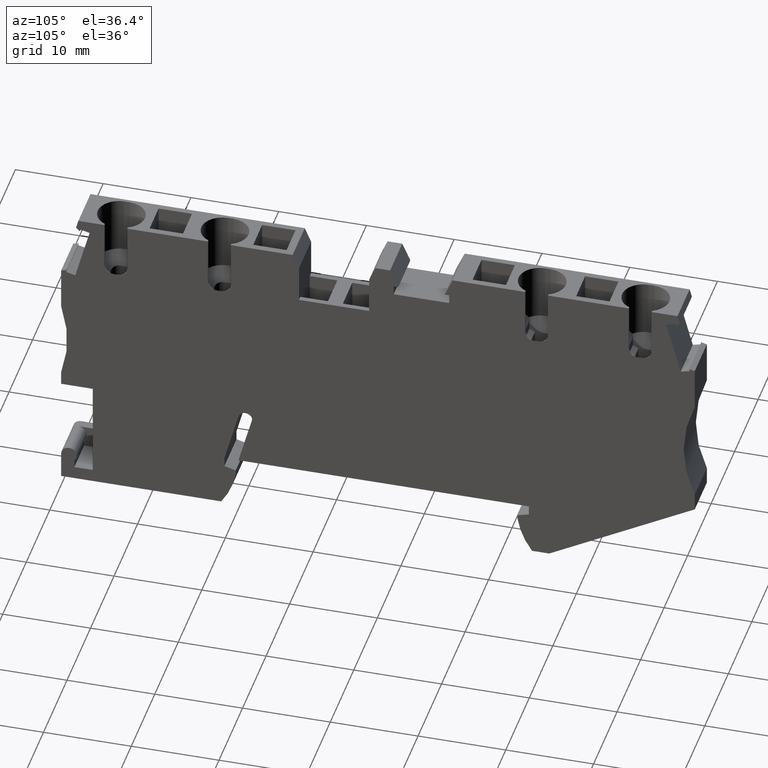
[diagram: clean part render]
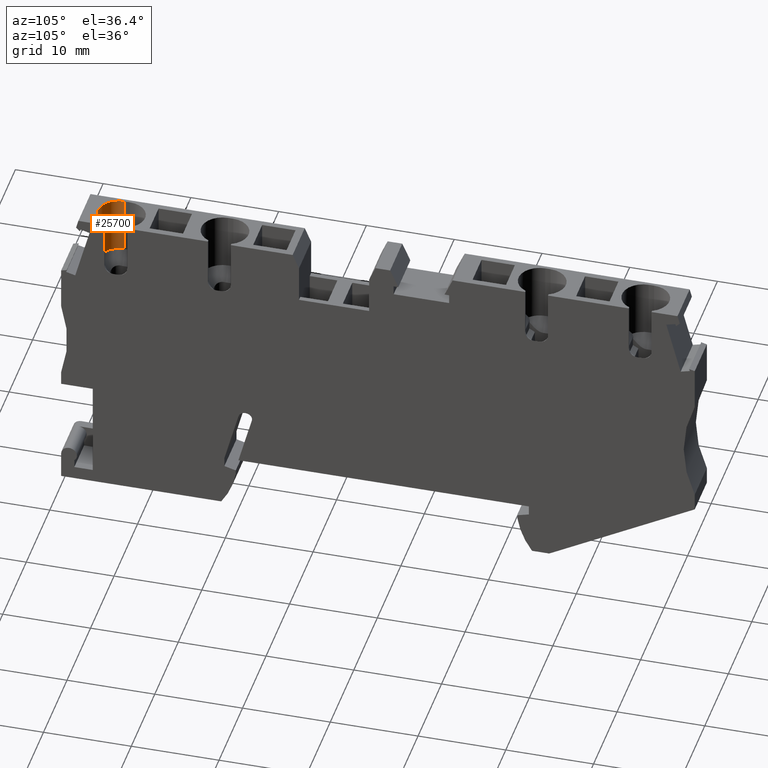
[diagram: same view with one face highlighted and labeled with its STEP entity id]
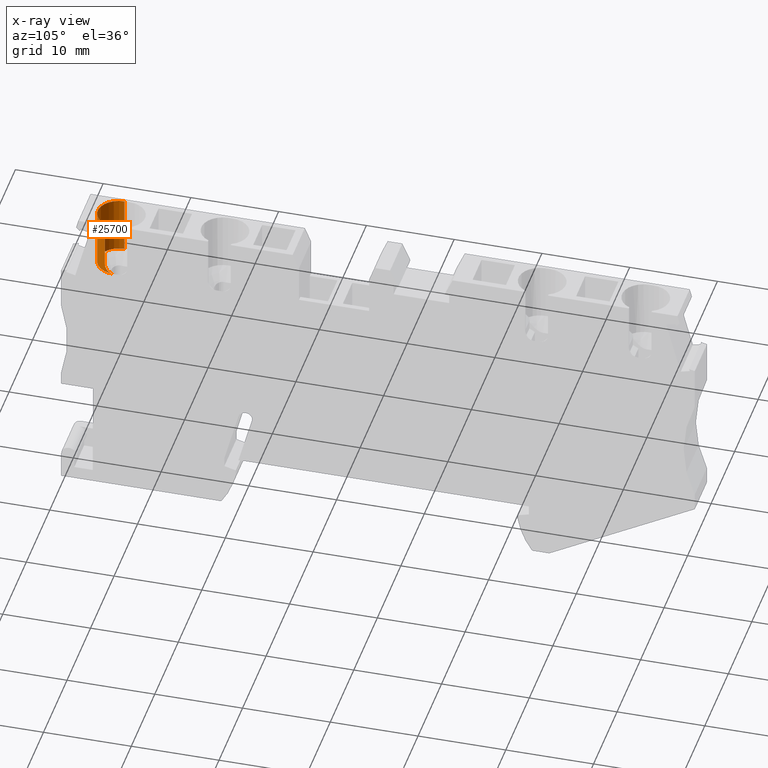
[diagram: x-ray of the same camera — body ghosted, the highlighted face saturated]
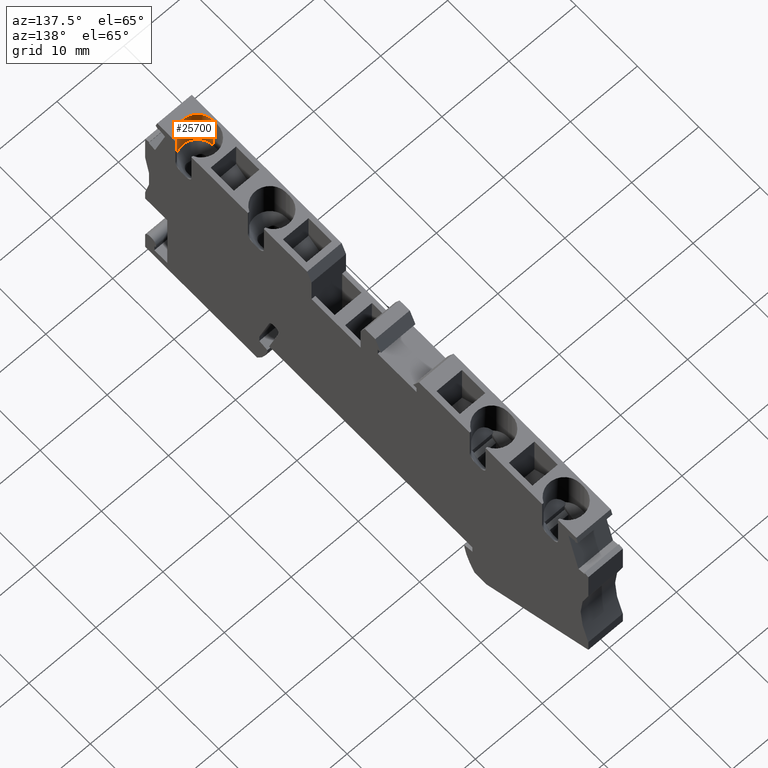
[diagram: same view with one face highlighted and labeled with its STEP entity id]
A machine part, auxiliary view. The second image highlights one B-rep face of the part: STEP entity #25700.
The next image is the same camera in x-ray: the body ghosted, the highlighted face saturated — about 0% of this face is hidden behind the body in this view.
A second angle (auxiliary view) of the same face is appended — the face is thin or edge-on in the first view.
In plain terms, the highlighted cylindrical surface (edge-blend (fillet) strip) has radius 2.4 mm, axis along (-0, 0, 1).
Its self-contained STEP definition (entity closure, byte-faithful):
#24140=CARTESIAN_POINT('',(2.11247365142423,24.0186372927697,
-0.218257577103059));
#24150=VERTEX_POINT('',#24140);
#24320=CARTESIAN_POINT('',(1.44219256913258,29.4776411644215,
-0.218257577073856));
#24330=VERTEX_POINT('',#24320);
#24360=CARTESIAN_POINT('',(2.27037927219697,22.7325992142725,
-0.218257577102876));
#24370=DIRECTION('',(-0.121869343405148,0.992546151641323,
-1.24702613346614E-13));
#24380=VECTOR('',#24370,1.);
#24390=LINE('',#24360,#24380);
#24400=EDGE_CURVE('',#24150,#24330,#24390,.T.);
#24520=CARTESIAN_POINT('',(3.26292573027511,22.8544685953031,-2.4));
#24530=DIRECTION('',(-0.121869343405148,0.992546151641323,
-1.26162968961438E-13));
#24540=DIRECTION('',(-0.992546151641323,-0.121869343405148,
4.13556346825043E-17));
#24550=AXIS2_PLACEMENT_3D('',#24520,#24530,#24540);
#24560=CYLINDRICAL_SURFACE('',#24550,2.4);
#24570=CARTESIAN_POINT('',(2.43473872077412,29.5995105078274,
-2.40000000000086));
#24580=DIRECTION('',(0.121869343405148,-0.992546151641323,
1.26162968961438E-13));
#24590=DIRECTION('',(-0.992546151641323,-0.121869343405148,
4.13556346825043E-17));
#24600=AXIS2_PLACEMENT_3D('',#24570,#24580,#24590);
#24610=CIRCLE('',#24600,2.4);
#24620=CARTESIAN_POINT('',(2.43473841434175,29.5995104702009,
-4.80000000000084));
#24630=VERTEX_POINT('',#24620);
#24640=EDGE_CURVE('',#24330,#24630,#24610,.T.);
#24650=ORIENTED_EDGE('',*,*,#24640,.F.);
#24660=CARTESIAN_POINT('',(3.26292542384285,22.8544685576776,
-4.80000000002888));
#24670=DIRECTION('',(-0.121869343405148,0.992546151641323,
-1.24702613346614E-13));
#24680=VECTOR('',#24670,1.);
#24690=LINE('',#24660,#24680);
#24700=CARTESIAN_POINT('',(3.22688914647531,23.1479604845333,
-4.80000000002892));
#24710=VERTEX_POINT('',#24700);
#24720=EDGE_CURVE('',#24710,#24630,#24690,.T.);
#24730=ORIENTED_EDGE('',*,*,#24720,.T.);
#24740=CARTESIAN_POINT('',(3.22688914647327,23.1479604845334,
-2.40000000002892));
#24750=DIRECTION('',(0.121869343405148,-0.992546151641323,
1.24702613346614E-13));
#24760=DIRECTION('',(-0.992546151641322,-0.121869343405148,
-8.43013072998262E-13));
#24770=AXIS2_PLACEMENT_3D('',#24740,#24750,#24760);
#24780=CIRCLE('',#24770,2.40000000000001);
#24790=CARTESIAN_POINT('',(3.22688945290176,23.1479605222088,
3.90420525922719E-14));
#24800=VERTEX_POINT('',#24790);
#24810=EDGE_CURVE('',#24800,#24710,#24780,.T.);
#24820=ORIENTED_EDGE('',*,*,#24810,.T.);
#24830=CARTESIAN_POINT('',(3.10501980306513,24.1405066361747,
-2.90317127246871E-11));
#24840=DIRECTION('',(-8.51926806997207E-13,2.10356492885437E-14,1.));
#24850=DIRECTION('',(1.,4.16333634642381E-17,8.51926806997207E-13));
#24860=AXIS2_PLACEMENT_3D('',#24830,#24840,#24850);
#24870=CYLINDRICAL_SURFACE('',#24860,1.);
#24880=CARTESIAN_POINT('',(3.26292542384079,22.8544685576777,
-2.40000000002888));
#24890=DIRECTION('',(-0.121869343405148,0.992546151641323,
-1.24702613346614E-13));
#24900=DIRECTION('',(-0.992546151641323,-0.121869343405148,
-8.43013072998262E-13));
#24910=AXIS2_PLACEMENT_3D('',#24880,#24890,#24900);
#24920=CYLINDRICAL_SURFACE('',#24910,2.4);
#24930=CARTESIAN_POINT('',(2.11247365142397,24.0186372927697,
-0.218257577103179));
#24940=CARTESIAN_POINT('',(2.11448614636028,24.0022468368239,
-0.218257577103178));
#24950=CARTESIAN_POINT('',(2.11689347472358,23.9859787072231,
-0.218070982694501));
#24960=CARTESIAN_POINT('',(2.11971297437237,23.9697130375504,
-0.21769743282565));
#24970=CARTESIAN_POINT('',(2.12253143226315,23.9534533777707,
-0.217324020977232));
#24980=CARTESIAN_POINT('',(2.12575788182578,23.9372333342437,
-0.216763478924214));
#24990=CARTESIAN_POINT('',(2.1293895897331,23.9210853818866,
-0.216017742337902));
#25000=CARTESIAN_POINT('',(2.13302128070717,23.9049375048212,
-0.215272009228672));
#25010=CARTESIAN_POINT('',(2.13705817235153,23.8888621040111,
-0.214341092015322));
#25020=CARTESIAN_POINT('',(2.14149353541985,23.8728928630665,
-0.213230311381604));
#25030=CARTESIAN_POINT('',(2.14592888789403,23.8569236602654,
-0.212119533401058));
#25040=CARTESIAN_POINT('',(2.15076261909875,23.8410609969119,
-0.210828924572506));
#25050=CARTESIAN_POINT('',(2.15598399796373,23.8253383626521,
-0.209367137972322));
#25060=CARTESIAN_POINT('',(2.1612053749793,23.8096157339613,
-0.207905351889903));
#25070=CARTESIAN_POINT('',(2.16681427943103,23.7940334911094,
-0.20627243924352));
#25080=CARTESIAN_POINT('',(2.17279624696455,23.7786237249301,
-0.204480111548081));
#25090=CARTESIAN_POINT('',(2.17877822357785,23.7632139353609,
-0.202687781132141));
#25100=CARTESIAN_POINT('',(2.18513312368474,23.747976944016,
-0.200736100692013));
#25110=CARTESIAN_POINT('',(2.19184324619347,23.7329424375756,
-0.198639385851935));
#25120=CARTESIAN_POINT('',(2.1985533909368,23.717907881317,
-0.1965426640642));
#25130=CARTESIAN_POINT('',(2.20561860696852,23.7030760885798,
-0.194300981359538));
#25140=CARTESIAN_POINT('',(2.21301864596914,23.688473522632,
-0.191930668773511));
#25150=CARTESIAN_POINT('',(2.22041913742032,23.6738700638592,
-0.18956021126267));
#25160=CARTESIAN_POINT('',(2.22815238165955,23.6594995337656,
-0.187061818870138));
#25170=CARTESIAN_POINT('',(2.23620200407021,23.6453747020911,
-0.1844513605014));
#25180=CARTESIAN_POINT('',(2.2523119654374,23.6171062342072,
-0.179226968433596));
#25190=CARTESIAN_POINT('',(2.26983283850347,23.5895745068219,
-0.173506202019416));
#25200=CARTESIAN_POINT('',(2.28866745473323,23.5629524453208,
-0.167411959877357));
#25210=CARTESIAN_POINT('',(2.30750178699243,23.5363307852021,
-0.161317809618524));
#25220=CARTESIAN_POINT('',(2.32764696056797,23.5106233894436,
-0.154851721969856));
#25230=CARTESIAN_POINT('',(2.3489709067117,23.4859914978289,
-0.148155591864236));
#25240=CARTESIAN_POINT('',(2.37029484328782,23.4613596172661,
-0.141459464763028));
#25250=CARTESIAN_POINT('',(2.39279422327136,23.437807053092,
-0.134534956151296));
#25260=CARTESIAN_POINT('',(2.41631026631444,23.4154692757652,
-0.127531061091199));
#25270=CARTESIAN_POINT('',(2.43982664015248,23.3931311842179,
-0.120527067508865));
#25280=CARTESIAN_POINT('',(2.46435599044562,23.3720109908204,
-0.113445294969374));
#25290=CARTESIAN_POINT('',(2.48972492396882,23.3522096034784,
-0.10642961028219));
#25300=CARTESIAN_POINT('',(2.5150978861212,23.3324050716429,
-0.0994128114925156));
#25310=CARTESIAN_POINT('',(2.54155844967125,23.3137265267176,
-0.0923931587276818));
#25320=CARTESIAN_POINT('',(2.5689657820517,23.2963229555923,
-0.0855123366872882));
#25330=CARTESIAN_POINT('',(2.59637275321061,23.2789196138416,
-0.0786316053343461));
#25340=CARTESIAN_POINT('',(2.6247224187394,23.2627942552765,
-0.071891306683259));
#25350=CARTESIAN_POINT('',(2.65384093951631,23.2480730906826,
-0.06542873189265));
#25360=CARTESIAN_POINT('',(2.68295949274336,23.2333519096831,
-0.0589661499000449));
#25370=CARTESIAN_POINT('',(2.71284185672774,23.2200375426783,
-0.0527828688868614));
#25380=CARTESIAN_POINT('',(2.74329337364193,23.2082223499875,
-0.0470008995643525));
#25390=CARTESIAN_POINT('',(2.77374539885309,23.1964069600774,
-0.0412188337291662));
#25400=CARTESIAN_POINT('',(2.80476077752943,23.1860926500167,
-0.0358394041260622));
#25410=CARTESIAN_POINT('',(2.83614222488414,23.177332276076,
-0.0309604849882689));
#25420=CARTESIAN_POINT('',(2.85182974007995,23.1729529847781,
-0.0285215242466512));
#25430=CARTESIAN_POINT('',(2.86766496159924,23.1689458528495,
-0.026198510504529));
#25440=CARTESIAN_POINT('',(2.88361975721453,23.1653235663374,
-0.0240047054143662));
#25450=CARTESIAN_POINT('',(2.89957445575809,23.1617013018638,
-0.0218109136716942));
#25460=CARTESIAN_POINT('',(2.91564817244931,23.1584640342995,
-0.019746427889812));
#25470=CARTESIAN_POINT('',(2.93181008308994,23.1556216718737,
-0.0178229333685796));
#25480=CARTESIAN_POINT('',(2.94797198911925,23.1527793102588,
-0.0158994393961604));
#25490=CARTESIAN_POINT('',(2.96422179543284,23.1503319099602,
-0.0141169834029531));
#25500=CARTESIAN_POINT('',(2.98052767795102,23.148286040347,
-0.0124852118753115));
#25510=CARTESIAN_POINT('',(2.99683358359856,23.1462401678319,
-0.0108534380330556));
#25520=CARTESIAN_POINT('',(3.01319525697717,23.1445958582225,
-0.00937238469586169));
#25530=CARTESIAN_POINT('',(3.02958086605825,23.1433562128266,
-0.00804942507928379));
#25540=CARTESIAN_POINT('',(3.06232374767323,23.1408790658228,
-0.00540579371393919));
#25550=CARTESIAN_POINT('',(3.09527626915172,23.1400099682623,
-0.0033855204667898));
#25560=CARTESIAN_POINT('',(3.12826006876806,23.1407767276244,
-0.00203323475644651));
#25570=CARTESIAN_POINT('',(3.14474768358538,23.1411600076942,
-0.00135726757939468));
#25580=CARTESIAN_POINT('',(3.16123372870298,23.1419516722808,
-0.000848299302460444));
#25590=CARTESIAN_POINT('',(3.17768319946706,23.1431501147525,
-0.000508985490272656));
#25600=CARTESIAN_POINT('',(3.19413363393514,23.1443486274359,
-0.000169651799142456));
#25610=CARTESIAN_POINT('',(3.21054309430527,23.1459534416958,
-2.89374931975065E-11));
#25620=CARTESIAN_POINT('',(3.22688914647069,23.1479604845334,
-2.89199921834115E-11));
#25630=B_SPLINE_CURVE_WITH_KNOTS('',3,(#24930,#24940,#24950,#24960,
#24970,#24980,#24990,#25000,#25010,#25020,#25030,#25040,#25050,#25060,
#25070,#25080,#25090,#25100,#25110,#25120,#25130,#25140,#25150,#25160,
#25170,#25180,#25190,#25200,#25210,#25220,#25230,#25240,#25250,#25260,
#25270,#25280,#25290,#25300,#25310,#25320,#25330,#25340,#25350,#25360,
#25370,#25380,#25390,#25400,#25410,#25420,#25430,#25440,#25450,#25460,
#25470,#25480,#25490,#25500,#25510,#25520,#25530,#25540,#25550,#25560,
#25570,#25580,#25590,#25600,#25610,#25620),.UNSPECIFIED.,.F.,.F.,(4,3,3,
3,3,3,3,3,3,3,3,3,3,3,3,3,3,3,3,3,3,3,3,4),(0.,0.0494662247970179,
0.0990818859377369,0.148855385619315,0.19872450851117,0.248618211190514,
0.298460508284671,0.34817408577548,0.397686136808926,0.4969057558298,
0.596596253643875,0.696300675283404,0.795518282975087,0.894752194136716,
0.994466397991987,1.09415301544087,1.19335296493701,1.24282250690082,
1.29237239871723,1.34193309014771,1.39143822137925,1.4903807299471,
1.53989019130823,1.58933923803405),.UNSPECIFIED.);
#25640=SURFACE_CURVE('',#25630,(#24870,#24920),.CURVE_3D.);
#25650=EDGE_CURVE('',#24150,#24800,#25640,.T.);
#25660=ORIENTED_EDGE('',*,*,#25650,.T.);
#25670=ORIENTED_EDGE('',*,*,#24400,.F.);
#25680=EDGE_LOOP('',(#25670,#25660,#24820,#24730,#24650));
#25690=FACE_OUTER_BOUND('',#25680,.T.);
#25700=ADVANCED_FACE('',(#25690),#24560,.F.);